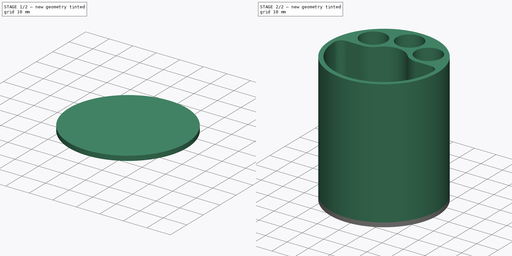
[diagram: build sequence overview — one tinted view per stage of 2, left to right]
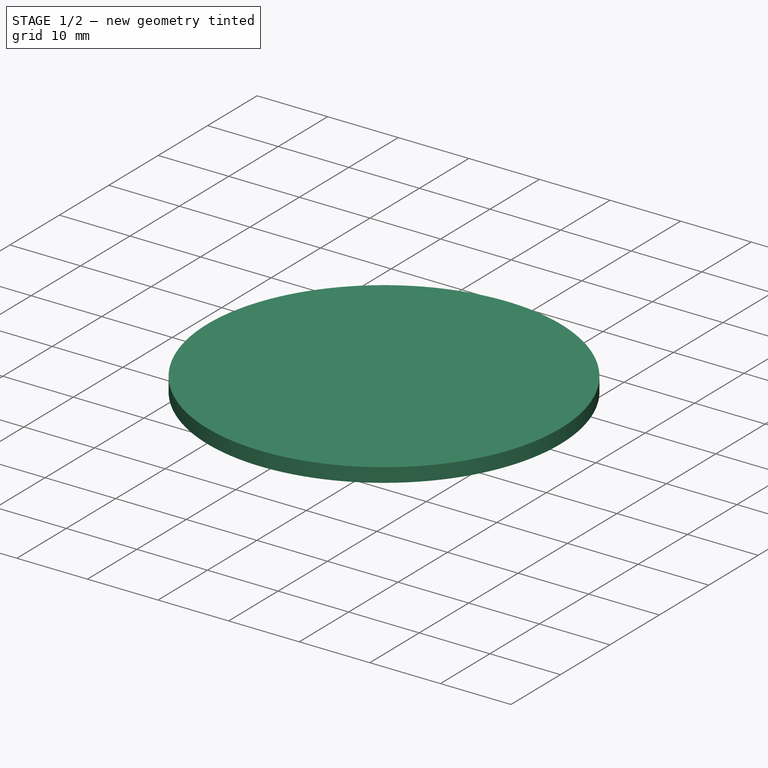
[diagram: stage 1 of 2 — iso view after this stage's code; geometry added in this stage tinted green]
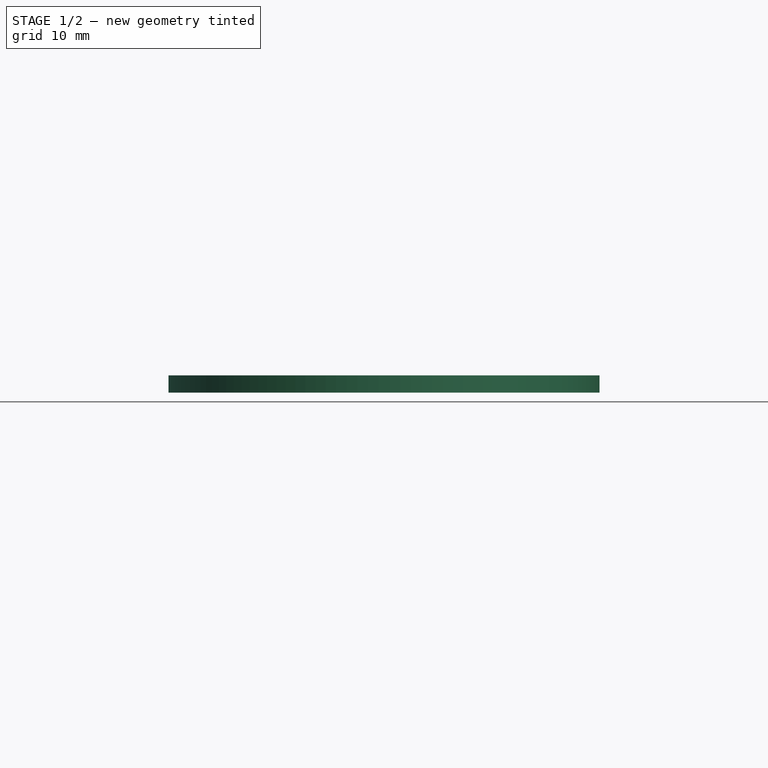
[diagram: stage 1 of 2 — front view after this stage's code; geometry added in this stage tinted green]
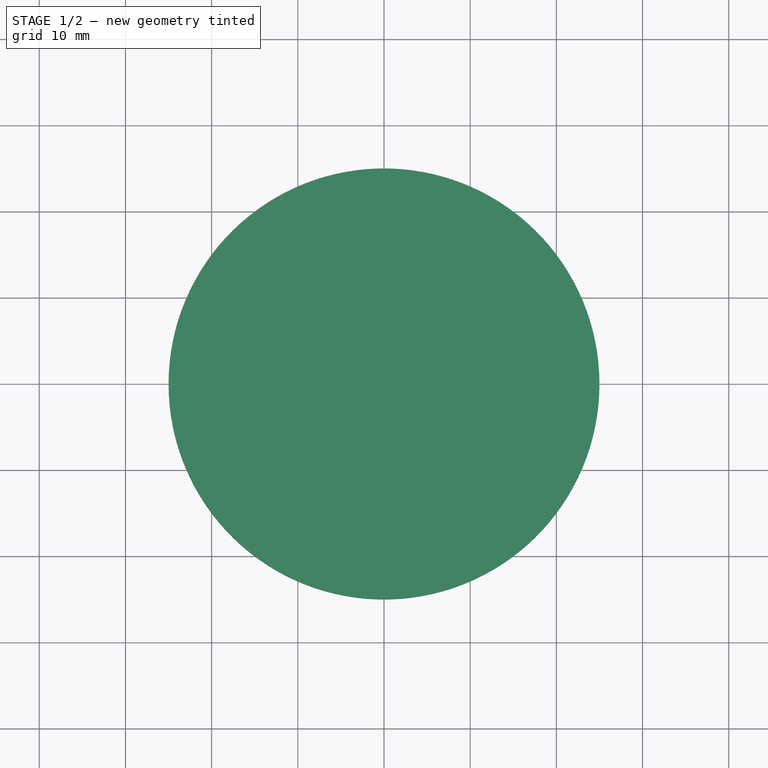
[diagram: stage 1 of 2 — top view after this stage's code; geometry added in this stage tinted green]
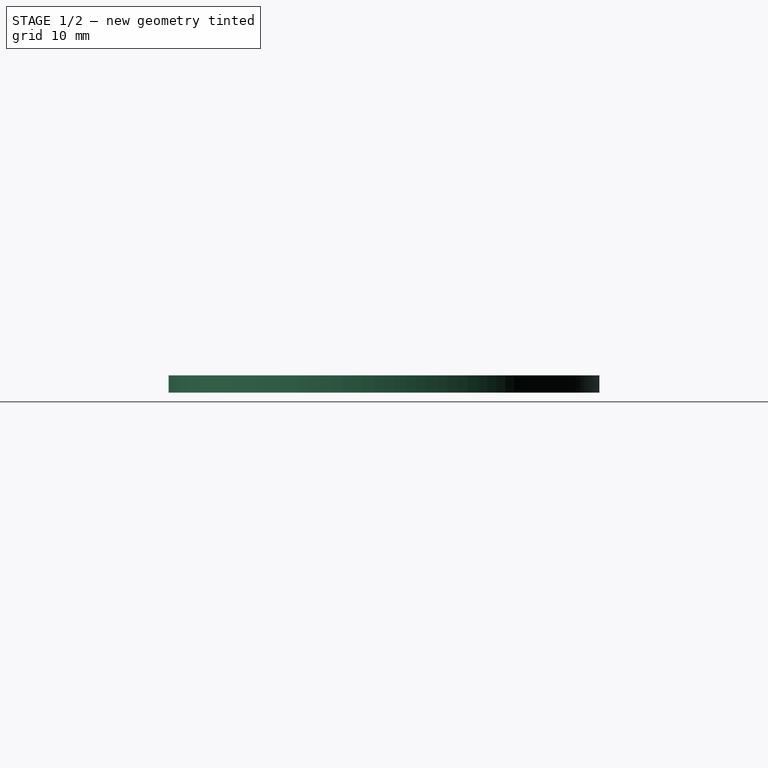
[diagram: stage 1 of 2 — right view after this stage's code; geometry added in this stage tinted green]
FCSTD DOCUMENT  (FreeCAD 1.0R38643 (Git))
Label: pen_cup
License: All rights reserved
LicenseURL: http://en.wikipedia.org/wiki/All_rights_reserved
objects: Sketcher::SketchObject×2, PartDesign::Pad×2, PartDesign::Body×1
note: 11 computed .brp shape members not serialized (recipe doc carries the construction recipe); baked Part::Feature solids carry a one-line shape summary decoded from their .brp

FEATURE [Sketcher::SketchObject] Sketch
  ArcFitTolerance = 1e-06
  AttachmentSupport = -> [XY_Plane]
  FullyConstrained = true
  MakeInternals = false
  MapMode = 5
  sketch-geometry (1):
    g0: Circle CenterX=0 CenterY=0 CenterZ=0 NormalX=0 NormalY=0 NormalZ=1 AngleXU=0 Radius=25
  constraints (2):
    c: Coincident(g0,g-1)
    c: Diameter(g0) = 50
FEATURE [PartDesign::Pad] Pad
  Direction = (0,0,1)
  Length = 2
  Length2 = 10
  Profile = -> Sketch
  ReferenceAxis = -> Sketch [N_Axis]
  Suppressed = false
  Type = 0
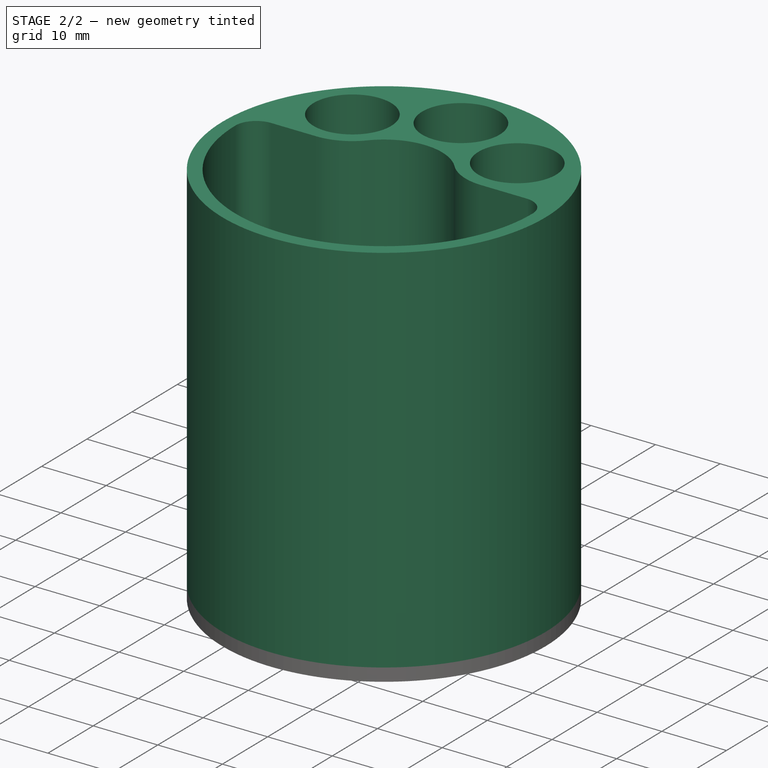
[diagram: stage 2 of 2 — iso view after this stage's code; geometry added in this stage tinted green]
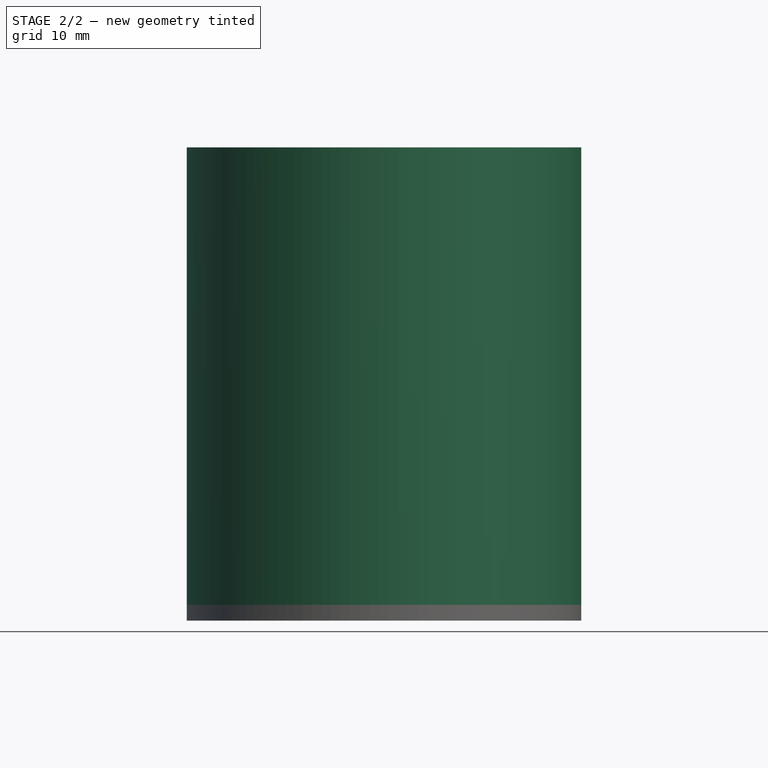
[diagram: stage 2 of 2 — front view after this stage's code; geometry added in this stage tinted green]
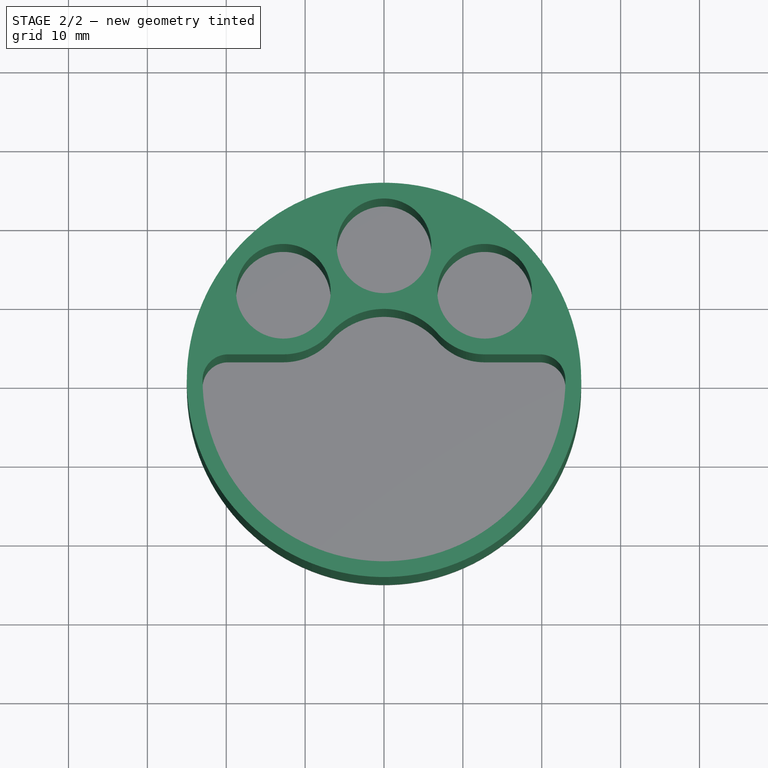
[diagram: stage 2 of 2 — top view after this stage's code; geometry added in this stage tinted green]
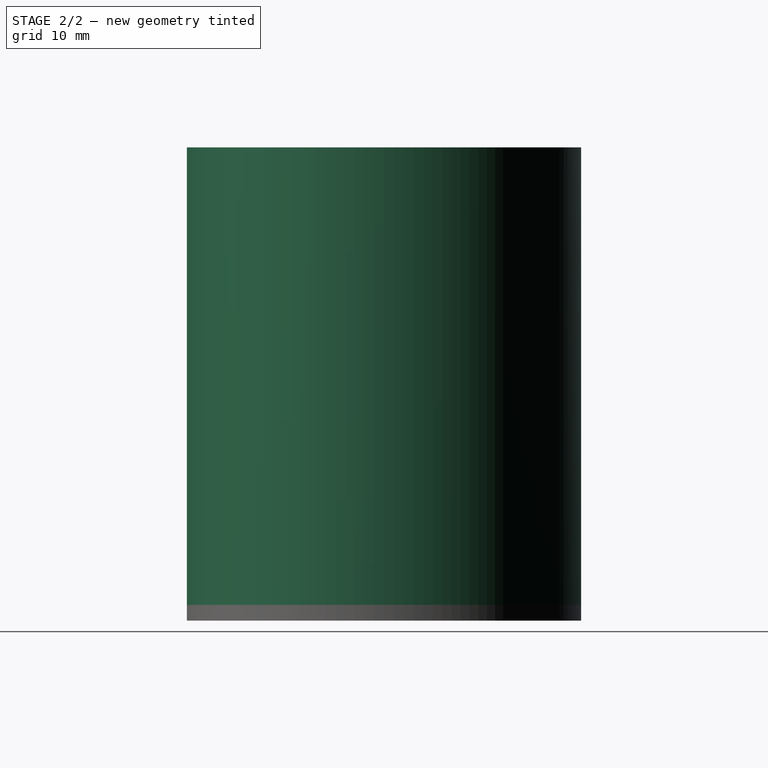
[diagram: stage 2 of 2 — right view after this stage's code; geometry added in this stage tinted green]
FEATURE [Sketcher::SketchObject] Sketch002  label="Sketch001"
  ArcFitTolerance = 1e-06
  AttachmentSupport = -> [Pad]
  ExternalGeometry = -> [Pad]
  FullyConstrained = true
  MakeInternals = false
  MapMode = 5
  Placement = pos=(0,0,2) rot=(0,0,1;0rad)
  sketch-geometry (13):
    g0: Circle CenterX=0 CenterY=0 CenterZ=0 NormalX=0 NormalY=0 NormalZ=1 AngleXU=0 Radius=25
    g1: Circle CenterX=0 CenterY=17 CenterZ=0 NormalX=0 NormalY=0 NormalZ=1 AngleXU=0 Radius=6
    g2: Circle CenterX=-12.7581 CenterY=11.2353 CenterZ=0 NormalX=0 NormalY=0 NormalZ=1 AngleXU=0 Radius=6
    g3: Circle CenterX=12.7581 CenterY=11.2353 CenterZ=0 NormalX=0 NormalY=0 NormalZ=1 AngleXU=0 Radius=6
    g4: ArcOfCircle CenterX=0 CenterY=0 CenterZ=0 NormalX=0 NormalY=0 NormalZ=1 AngleXU=0 Radius=23 StartAngle=3.14159 EndAngle=6.28319
    g5: ArcOfCircle CenterX=-19.7647 CenterY=0 CenterZ=0 NormalX=0 NormalY=0 NormalZ=1 AngleXU=0 Radius=3.23529 StartAngle=1.5708 EndAngle=3.14159
    g6: LineSegment StartX=-19.7647 StartY=3.23529 StartZ=0 EndX=-12.7581 EndY=3.23529 EndZ=0
    g7: ArcOfCircle CenterX=-12.7581 CenterY=11.2353 CenterZ=0 NormalX=0 NormalY=0 NormalZ=1 AngleXU=0 Radius=8 StartAngle=4.71239 EndAngle=5.56117
    g8: ArcOfCircle CenterX=0 CenterY=-9e-16 CenterZ=0 NormalX=0 NormalY=0 NormalZ=1 AngleXU=0 Radius=9 StartAngle=1.5708 EndAngle=2.41958
    g9: ArcOfCircle CenterX=0 CenterY=-9e-16 CenterZ=0 NormalX=0 NormalY=0 NormalZ=1 AngleXU=0 Radius=9 StartAngle=0.722017 EndAngle=1.5708
    g10: ArcOfCircle CenterX=12.7581 CenterY=11.2353 CenterZ=0 NormalX=0 NormalY=0 NormalZ=1 AngleXU=0 Radius=8 StartAngle=3.86361 EndAngle=4.71239
    g11: LineSegment StartX=19.7647 StartY=3.23529 StartZ=0 EndX=12.7581 EndY=3.23529 EndZ=0
    g12: ArcOfCircle CenterX=19.7647 CenterY=0 CenterZ=0 NormalX=0 NormalY=0 NormalZ=1 AngleXU=0 Radius=3.23529 StartAngle=0 EndAngle=1.5708
  constraints (34):
    c: Coincident(g0,g-1)
    c: PointOnObject(g1,g-2)
    c: Diameter(g1) = 12
    c: Distance(g0,g1) = 2
    c: Equal(g0,g-3)
    c: Equal(g1,g2)
    c: Equal(g1,g3)
    c: Distance(g1,g2) = 2
    c: Distance(g1,g3) = 2
    c: Horizontal(g2,g3)
    c: Distance(g3,g0) = 2
    c: PointOnObject(g4,g-1)
    c: PointOnObject(g4,g-1)
    c: Distance(g4,g0) = 2
    c: Coincident(g4,g0)
    c: Horizontal(g6)
    c: PointOnObject(g8,g-2)
    c: Tangent(g5,g4) = -1.5708
    c: Tangent(g6,g5) = 1.5708
    c: Tangent(g7,g6) = -1.5708
    c: Tangent(g8,g7) = 1.5708
    c: PointOnObject(g8,g-2)
    c: Distance(g8,g1) = 2
    c: Distance(g2,g6) = 2
    c: Coincident(g7,g2)
    c: Horizontal(g11)
    c: Tangent(g11,g12) = -1.5708
    c: Tangent(g10,g11) = 1.5708
    c: Tangent(g9,g10) = 1.5708
    c: Coincident(g9,g8)
    c: Coincident(g9,g8)
    c: Coincident(g10,g3)
    c: Coincident(g12,g4)
    c: PointOnObject(g12,g-1)
FEATURE [PartDesign::Pad] Pad001
  BaseFeature = -> Pad
  Direction = (0,0,1)
  Length = 58
  Length2 = 10
  Profile = -> Sketch002
  ReferenceAxis = -> Sketch002 [N_Axis]
  Suppressed = false
  Type = 0
FEATURE [PartDesign::Body] Body
  AllowCompound = false
  Group = -> [Sketch,Pad,Sketch002,Pad001]
  Origin = -> Origin
  Tip = -> Pad001
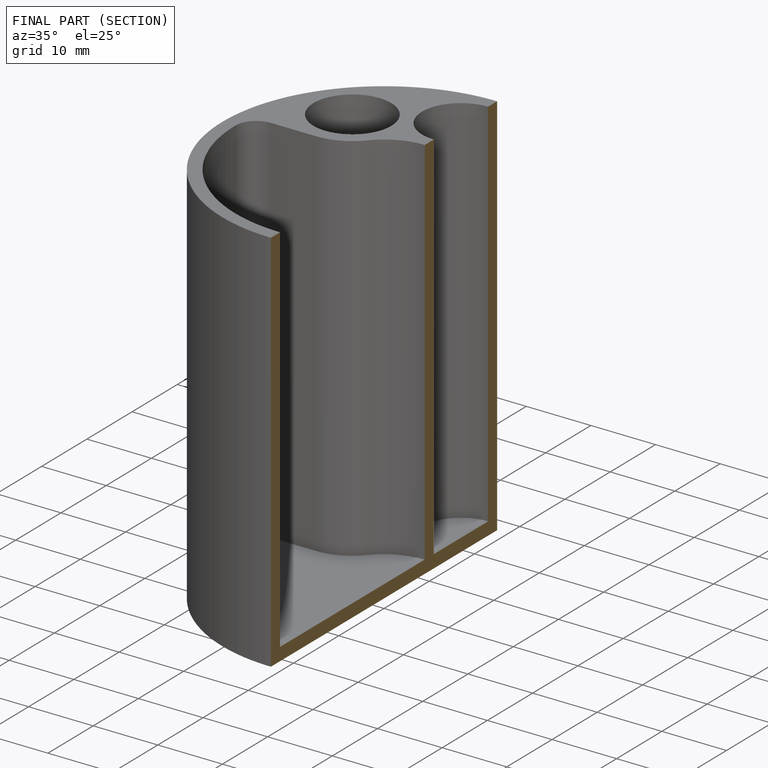
[diagram: finished part — half-section view (interior)]
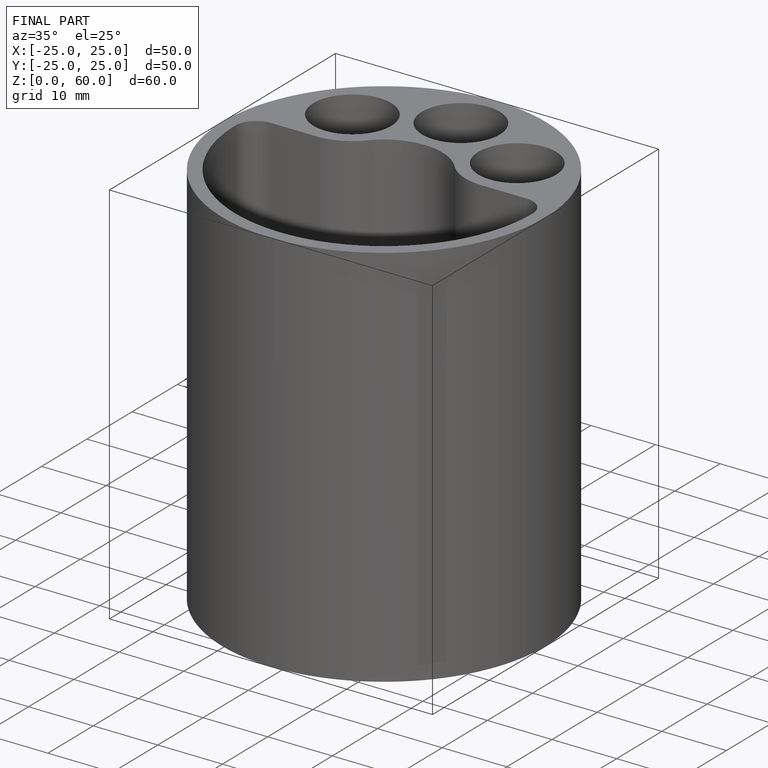
[diagram: finished part — iso view with bounding-box wireframe]
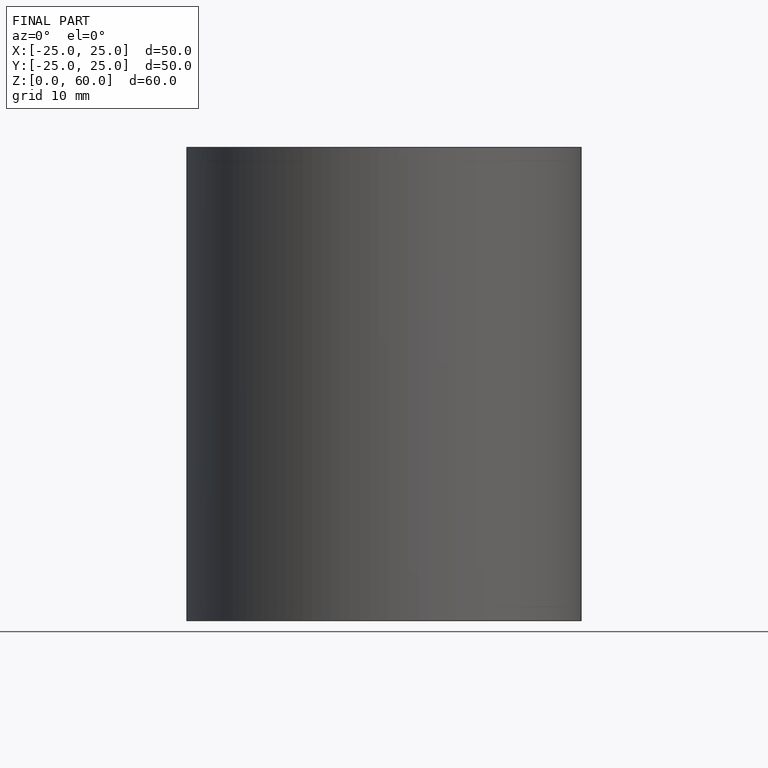
[diagram: finished part — front view with bounding-box wireframe]
